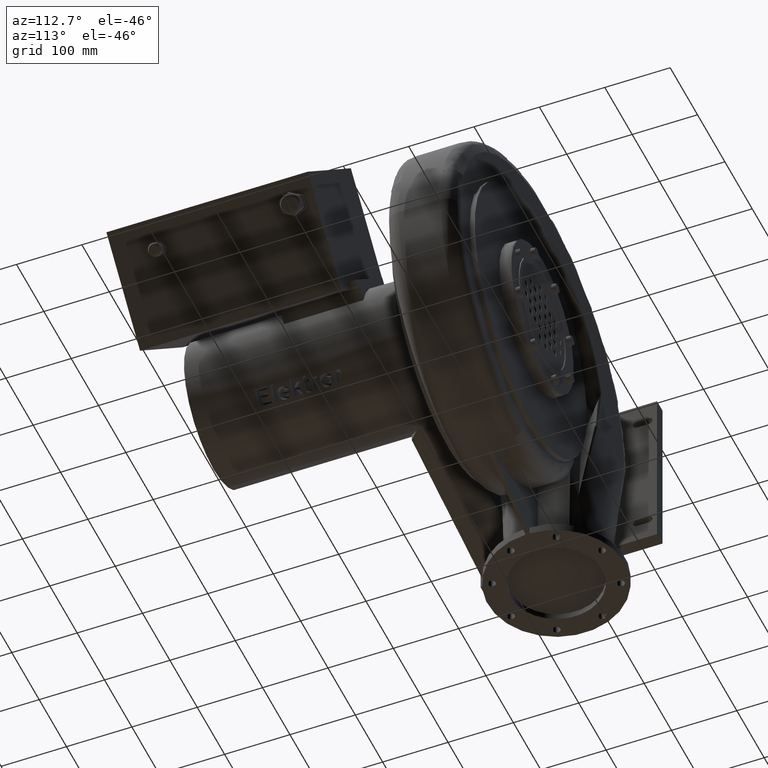
[diagram: clean part render]
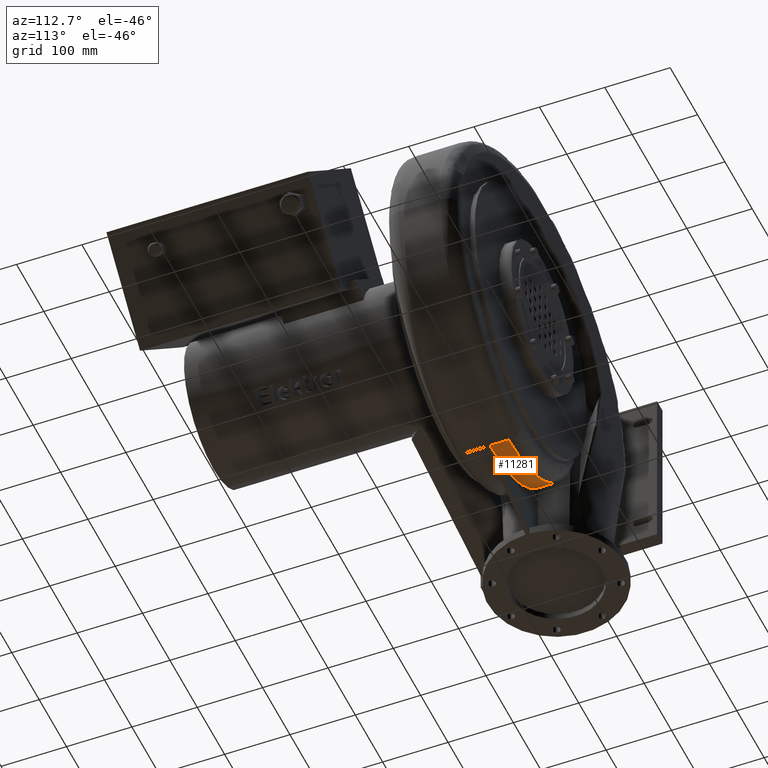
[diagram: same view with one face highlighted and labeled with its STEP entity id]
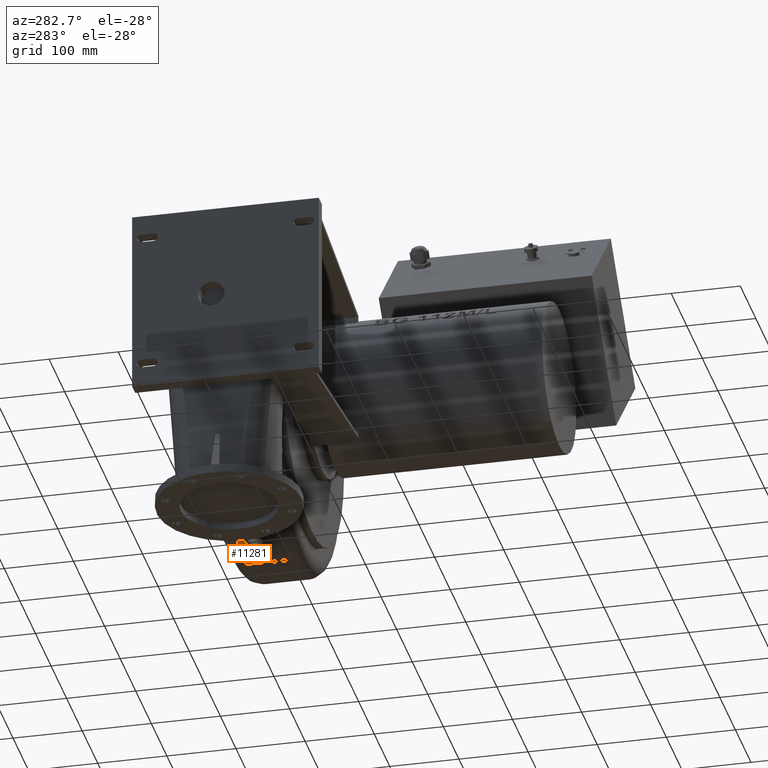
[diagram: same view with one face highlighted and labeled with its STEP entity id]
A machine part, auxiliary view. The second image highlights one B-rep face of the part: STEP entity #11281.
A second angle (auxiliary view) of the same face is appended — the face is thin or edge-on in the first view.
In plain terms, the highlighted cylindrical surface (partial cylindrical patch) has radius 230 mm, axis along (-0, 1, -0).
Its self-contained STEP definition (entity closure, byte-faithful):
#10376=CARTESIAN_POINT('',(364.99999999999864,187.50000000000023,-374.99999999999972));
#10377=VERTEX_POINT('',#10376);
#11187=CARTESIAN_POINT('',(189.97014732170391,158.50000000000006,-294.21310489167627));
#11188=VERTEX_POINT('',#11187);
#11203=CARTESIAN_POINT('',(186.66658208575669,187.50000000000006,-290.24872479655119));
#11204=VERTEX_POINT('',#11203);
#11216=CARTESIAN_POINT('',(189.97014732170396,158.50000000000009,-294.21310489167615));
#11217=CARTESIAN_POINT('',(189.77326059604465,168.39107718241684,-293.9821529614722));
#11218=CARTESIAN_POINT('',(188.60080885432416,178.019700620892,-292.62352892060113));
#11219=CARTESIAN_POINT('',(186.66658208575669,187.50000000000003,-290.24872479655113));
#11220=B_SPLINE_CURVE_WITH_KNOTS('',3,(#11216,#11217,#11218,#11219),.UNSPECIFIED.,.F.,.U.,(4,4),(3.591235355571984,6.580038484161868),.UNSPECIFIED.);
#11221=EDGE_CURVE('',#11188,#11204,#11220,.T.);
#11251=CARTESIAN_POINT('',(364.99999999999864,155.50000000000023,-144.99999999999972));
#11252=DIRECTION('',(-8.150498E-016,1.0,-1.224647E-016));
#11253=DIRECTION('',(0.0,0.0,-1.0));
#11254=AXIS2_PLACEMENT_3D('',#11251,#11252,#11253);
#11255=CYLINDRICAL_SURFACE('',#11254,230.0);
#11256=CARTESIAN_POINT('',(364.99999999999864,187.50000000000023,-144.99999999999972));
#11257=DIRECTION('',(-4.420492E-016,1.0,-4.718831E-016));
#11258=DIRECTION('',(-0.68366022580506,-6.465919E-016,-0.729800449199762));
#11259=AXIS2_PLACEMENT_3D('',#11256,#11257,#11258);
#11260=CIRCLE('',#11259,229.99999999999997);
#11261=EDGE_CURVE('',#10377,#11204,#11260,.T.);
#11262=ORIENTED_EDGE('',*,*,#11261,.F.);
#11263=CARTESIAN_POINT('',(364.99999999999864,158.5000000000002,-374.99999999999972));
#11264=VERTEX_POINT('',#11263);
#11265=CARTESIAN_POINT('',(364.99999999999864,158.50000000000017,-374.99999999999972));
#11266=DIRECTION('',(0.0,1.0,0.0));
#11267=VECTOR('',#11266,29.0);
#11268=LINE('',#11265,#11267);
#11269=EDGE_CURVE('',#11264,#10377,#11268,.T.);
#11270=ORIENTED_EDGE('',*,*,#11269,.F.);
#11271=CARTESIAN_POINT('',(364.99999999999864,158.50000000000023,-144.99999999999972));
#11272=DIRECTION('',(0.0,1.0,0.0));
#11273=DIRECTION('',(0.0,0.0,-1.0));
#11274=AXIS2_PLACEMENT_3D('',#11271,#11272,#11273);
#11275=CIRCLE('',#11274,230.0);
#11276=EDGE_CURVE('',#11264,#11188,#11275,.T.);
#11277=ORIENTED_EDGE('',*,*,#11276,.T.);
#11278=ORIENTED_EDGE('',*,*,#11221,.T.);
#11279=EDGE_LOOP('',(#11262,#11270,#11277,#11278));
#11280=FACE_OUTER_BOUND('',#11279,.T.);
#11281=ADVANCED_FACE('',(#11280),#11255,.T.);